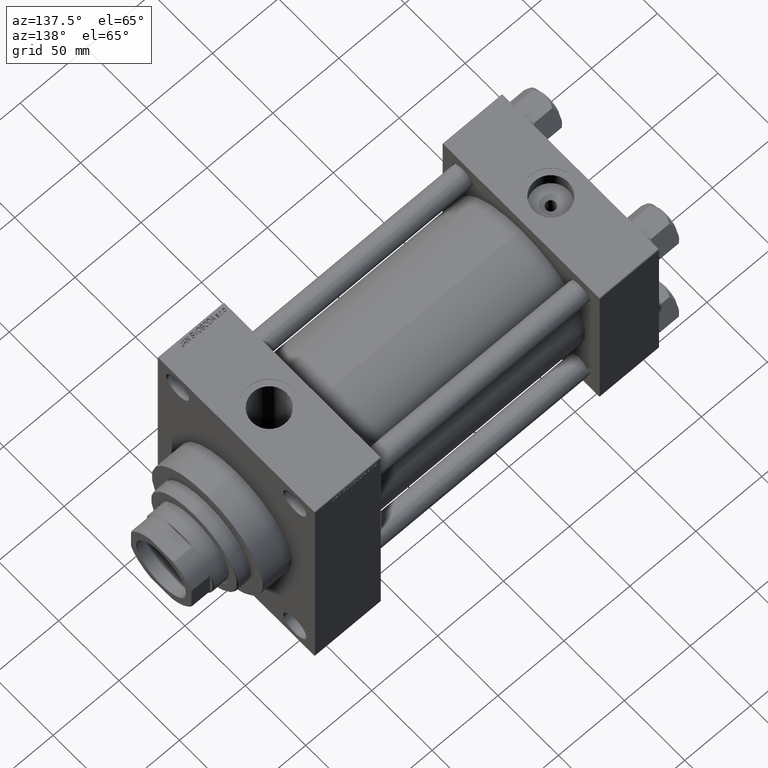
[diagram: clean part render]
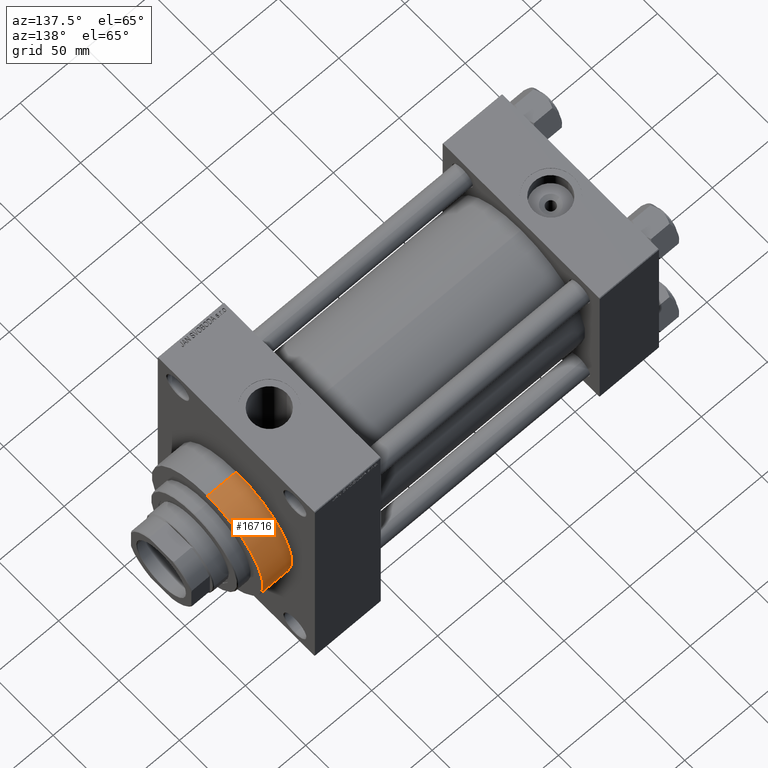
[diagram: same view with one face highlighted and labeled with its STEP entity id]
A machine part, auxiliary view. The second image highlights one B-rep face of the part: STEP entity #16716.
In plain terms, the highlighted cylindrical surface (partial cylindrical patch) has radius 46 mm, axis along (-1, -0, -0).
Its self-contained STEP definition (entity closure, byte-faithful):
#575 = ORIENTED_EDGE ( 'NONE', *, *, #16054, .T. ) ;
#690 = CARTESIAN_POINT ( 'NONE',  ( 283.0000000000000568, 0.000000000000000000, 0.000000000000000000 ) ) ;
#1521 = VECTOR ( 'NONE', #34616, 1000.000000000000000 ) ;
#1957 = VERTEX_POINT ( 'NONE', #14862 ) ;
#3444 = AXIS2_PLACEMENT_3D ( 'NONE', #46382, #31168, #38663 ) ;
#3445 = EDGE_CURVE ( 'NONE', #1957, #8423, #41237, .T. ) ;
#3549 = DIRECTION ( 'NONE',  ( 0.000000000000000000, 0.000000000000000000, -1.000000000000000000 ) ) ;
#7148 = CARTESIAN_POINT ( 'NONE',  ( 283.0000000000000568, 5.633375276077824704E-15, -46.00000000000000000 ) ) ;
#8168 = FACE_OUTER_BOUND ( 'NONE', #37723, .T. ) ;
#8423 = VERTEX_POINT ( 'NONE', #16214 ) ;
#8642 = DIRECTION ( 'NONE',  ( -1.000000000000000000, -0.000000000000000000, -0.000000000000000000 ) ) ;
#13641 = VERTEX_POINT ( 'NONE', #47040 ) ;
#14862 = CARTESIAN_POINT ( 'NONE',  ( 261.0000000000000000, 5.633375276077824704E-15, -46.00000000000000000 ) ) ;
#16054 = EDGE_CURVE ( 'NONE', #43294, #1957, #40230, .T. ) ;
#16136 = CYLINDRICAL_SURFACE ( 'NONE', #29216, 46.00000000000000000 ) ;
#16214 = CARTESIAN_POINT ( 'NONE',  ( 261.0000000000000000, 0.000000000000000000, 46.00000000000000000 ) ) ;
#16716 = ADVANCED_FACE ( 'NONE', ( #8168 ), #16136, .T. ) ;
#16818 = CARTESIAN_POINT ( 'NONE',  ( 283.0000000000000568, 5.633375276077824704E-15, -46.00000000000000000 ) ) ;
#17585 = CARTESIAN_POINT ( 'NONE',  ( 283.0000000000000568, 0.000000000000000000, 0.000000000000000000 ) ) ;
#18181 = EDGE_CURVE ( 'NONE', #13641, #8423, #45963, .T. ) ;
#21626 = ORIENTED_EDGE ( 'NONE', *, *, #18181, .F. ) ;
#22334 = ORIENTED_EDGE ( 'NONE', *, *, #47336, .F. ) ;
#23629 = DIRECTION ( 'NONE',  ( 0.000000000000000000, 0.000000000000000000, 1.000000000000000000 ) ) ;
#24180 = CIRCLE ( 'NONE', #34191, 46.00000000000000000 ) ;
#25078 = DIRECTION ( 'NONE',  ( 1.000000000000000000, 0.000000000000000000, 0.000000000000000000 ) ) ;
#29216 = AXIS2_PLACEMENT_3D ( 'NONE', #690, #8642, #23629 ) ;
#31168 = DIRECTION ( 'NONE',  ( 1.000000000000000000, 0.000000000000000000, 0.000000000000000000 ) ) ;
#34191 = AXIS2_PLACEMENT_3D ( 'NONE', #17585, #25078, #3549 ) ;
#34616 = DIRECTION ( 'NONE',  ( -1.000000000000000000, -0.000000000000000000, -0.000000000000000000 ) ) ;
#36141 = DIRECTION ( 'NONE',  ( -1.000000000000000000, -0.000000000000000000, -0.000000000000000000 ) ) ;
#37723 = EDGE_LOOP ( 'NONE', ( #22334, #575, #42119, #21626 ) ) ;
#38663 = DIRECTION ( 'NONE',  ( 0.000000000000000000, 0.000000000000000000, -1.000000000000000000 ) ) ;
#40230 = LINE ( 'NONE', #7148, #45390 ) ;
#41237 = CIRCLE ( 'NONE', #3444, 46.00000000000000000 ) ;
#42119 = ORIENTED_EDGE ( 'NONE', *, *, #3445, .T. ) ;
#42343 = CARTESIAN_POINT ( 'NONE',  ( 283.0000000000000568, 0.000000000000000000, 46.00000000000000000 ) ) ;
#43294 = VERTEX_POINT ( 'NONE', #16818 ) ;
#45390 = VECTOR ( 'NONE', #36141, 1000.000000000000000 ) ;
#45963 = LINE ( 'NONE', #42343, #1521 ) ;
#46382 = CARTESIAN_POINT ( 'NONE',  ( 261.0000000000000000, 0.000000000000000000, 0.000000000000000000 ) ) ;
#47040 = CARTESIAN_POINT ( 'NONE',  ( 283.0000000000000568, 0.000000000000000000, 46.00000000000000000 ) ) ;
#47336 = EDGE_CURVE ( 'NONE', #43294, #13641, #24180, .T. ) ;